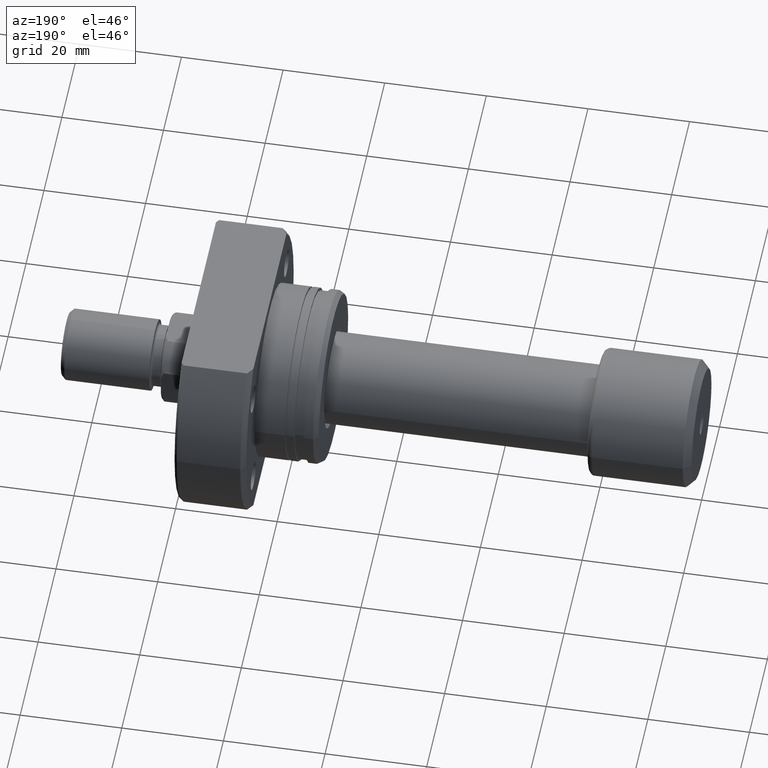
[diagram: clean part render]
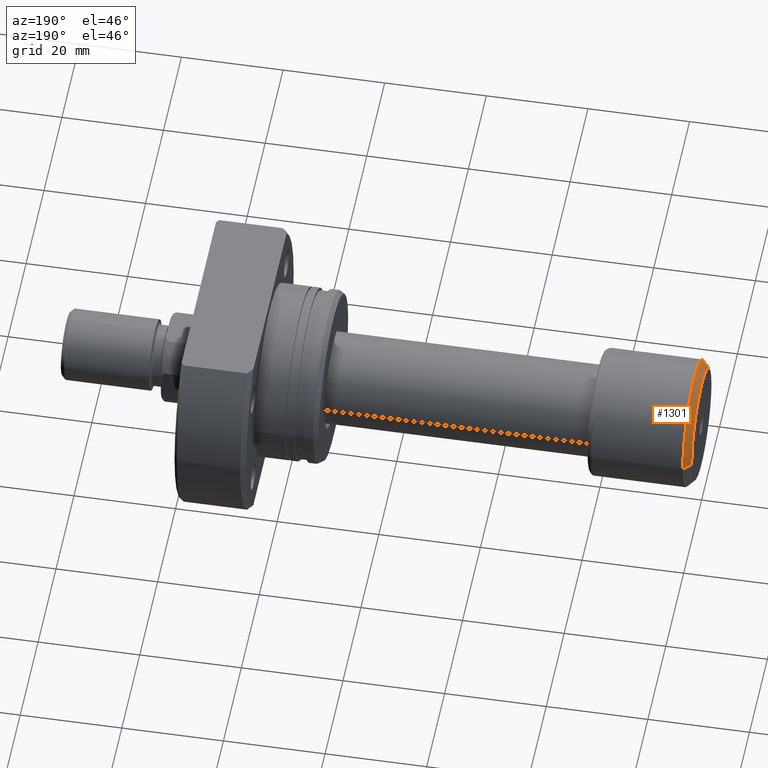
[diagram: same view with one face highlighted and labeled with its STEP entity id]
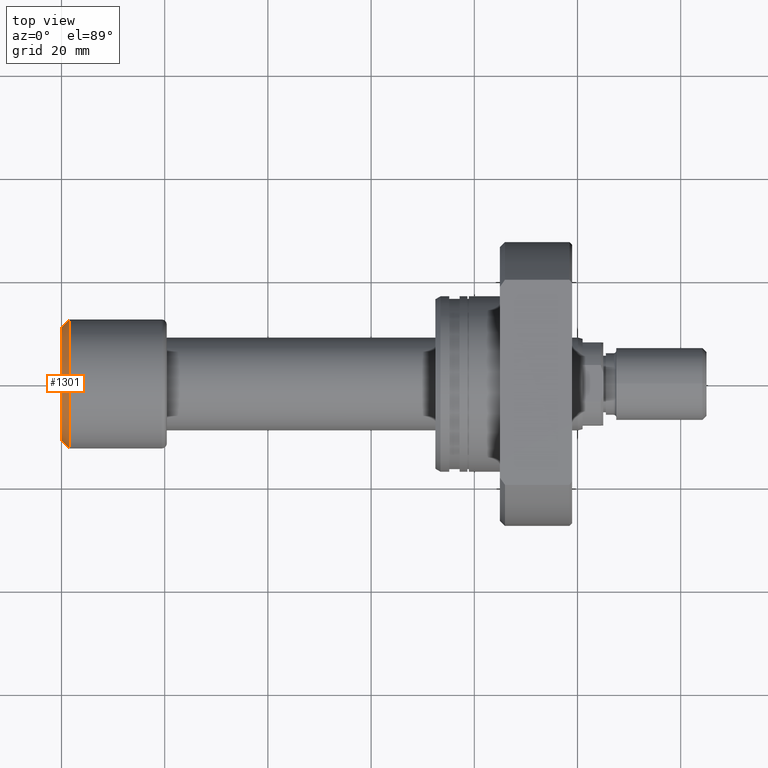
[diagram: same view with one face highlighted and labeled with its STEP entity id]
A machine part, auxiliary view. The second image highlights one B-rep face of the part: STEP entity #1301.
A second angle (top view) of the same face is appended — the face is thin or edge-on in the first view.
In plain terms, the highlighted conical surface has half-angle 45 deg.
Its self-contained STEP definition (entity closure, byte-faithful):
#54 = FACE_OUTER_BOUND ( 'NONE', #824, .T. ) ;
#270 = DIRECTION ( 'NONE',  ( -1.069542322069065647E-17, 1.000000000000000000, 0.000000000000000000 ) ) ;
#343 = LINE ( 'NONE', #2639, #3303 ) ;
#548 = CONICAL_SURFACE ( 'NONE', #3580, 11.00000000000000178, 0.7853981633974480570 ) ;
#585 = ORIENTED_EDGE ( 'NONE', *, *, #2612, .T. ) ;
#824 = EDGE_LOOP ( 'NONE', ( #2682, #2333, #585, #3328 ) ) ;
#922 = CARTESIAN_POINT ( 'NONE',  ( 1.229461823634491368E-15, 1.314961453745302249E-32, 0.000000000000000000 ) ) ;
#1249 = DIRECTION ( 'NONE',  ( -1.000000000000000000, -1.069542322069065801E-17, -0.000000000000000000 ) ) ;
#1301 = ADVANCED_FACE ( 'NONE', ( #54 ), #548, .T. ) ;
#1360 = LINE ( 'NONE', #2511, #1461 ) ;
#1461 = VECTOR ( 'NONE', #1952, 999.9999999999998863 ) ;
#1560 = CARTESIAN_POINT ( 'NONE',  ( 1.500000000000001554, 1.604313483103600319E-17, 0.000000000000000000 ) ) ;
#1669 = DIRECTION ( 'NONE',  ( 1.069542322069065647E-17, -1.000000000000000000, 0.000000000000000000 ) ) ;
#1721 = VERTEX_POINT ( 'NONE', #2238 ) ;
#1775 = CARTESIAN_POINT ( 'NONE',  ( 1.500000000000001776, -12.50000000000000000, 1.530808498934191521E-15 ) ) ;
#1952 = DIRECTION ( 'NONE',  ( 0.7071067811865477948, 0.7071067811865473507, 0.000000000000000000 ) ) ;
#1955 = VERTEX_POINT ( 'NONE', #2060 ) ;
#2060 = CARTESIAN_POINT ( 'NONE',  ( 1.500000000000001332, 12.50000000000000000, 0.000000000000000000 ) ) ;
#2063 = DIRECTION ( 'NONE',  ( 0.7071067811865477948, -0.7071067811865473507, 8.659560562354931626E-17 ) ) ;
#2083 = DIRECTION ( 'NONE',  ( 1.734723475976807094E-17, -1.000000000000000000, 0.000000000000000000 ) ) ;
#2172 = AXIS2_PLACEMENT_3D ( 'NONE', #2490, #2553, #1669 ) ;
#2173 = CIRCLE ( 'NONE', #2707, 12.50000000000000000 ) ;
#2238 = CARTESIAN_POINT ( 'NONE',  ( 1.347111479062088602E-15, -11.00000000000000178, 1.438959988998140160E-15 ) ) ;
#2333 = ORIENTED_EDGE ( 'NONE', *, *, #3598, .T. ) ;
#2358 = EDGE_CURVE ( 'NONE', #3075, #1955, #1360, .T. ) ;
#2364 = EDGE_CURVE ( 'NONE', #1721, #3075, #3535, .T. ) ;
#2420 = CARTESIAN_POINT ( 'NONE',  ( 1.111812168206894135E-15, 11.00000000000000178, 0.000000000000000000 ) ) ;
#2490 = CARTESIAN_POINT ( 'NONE',  ( 1.229461823634491368E-15, 1.314961453745302249E-32, 0.000000000000000000 ) ) ;
#2511 = CARTESIAN_POINT ( 'NONE',  ( 1.111812168206894135E-15, 11.00000000000000178, 0.000000000000000000 ) ) ;
#2553 = DIRECTION ( 'NONE',  ( -1.000000000000000000, -1.069542322069065801E-17, -0.000000000000000000 ) ) ;
#2612 = EDGE_CURVE ( 'NONE', #2733, #1955, #2173, .T. ) ;
#2639 = CARTESIAN_POINT ( 'NONE',  ( 1.347111479062088602E-15, -11.00000000000000178, 1.347111479062088602E-15 ) ) ;
#2682 = ORIENTED_EDGE ( 'NONE', *, *, #2364, .F. ) ;
#2707 = AXIS2_PLACEMENT_3D ( 'NONE', #1560, #1249, #2083 ) ;
#2733 = VERTEX_POINT ( 'NONE', #1775 ) ;
#3075 = VERTEX_POINT ( 'NONE', #2420 ) ;
#3268 = DIRECTION ( 'NONE',  ( 1.000000000000000000, 1.069542322069065801E-17, 0.000000000000000000 ) ) ;
#3303 = VECTOR ( 'NONE', #2063, 999.9999999999998863 ) ;
#3328 = ORIENTED_EDGE ( 'NONE', *, *, #2358, .F. ) ;
#3535 = CIRCLE ( 'NONE', #2172, 11.00000000000000178 ) ;
#3580 = AXIS2_PLACEMENT_3D ( 'NONE', #922, #3268, #270 ) ;
#3598 = EDGE_CURVE ( 'NONE', #1721, #2733, #343, .T. ) ;